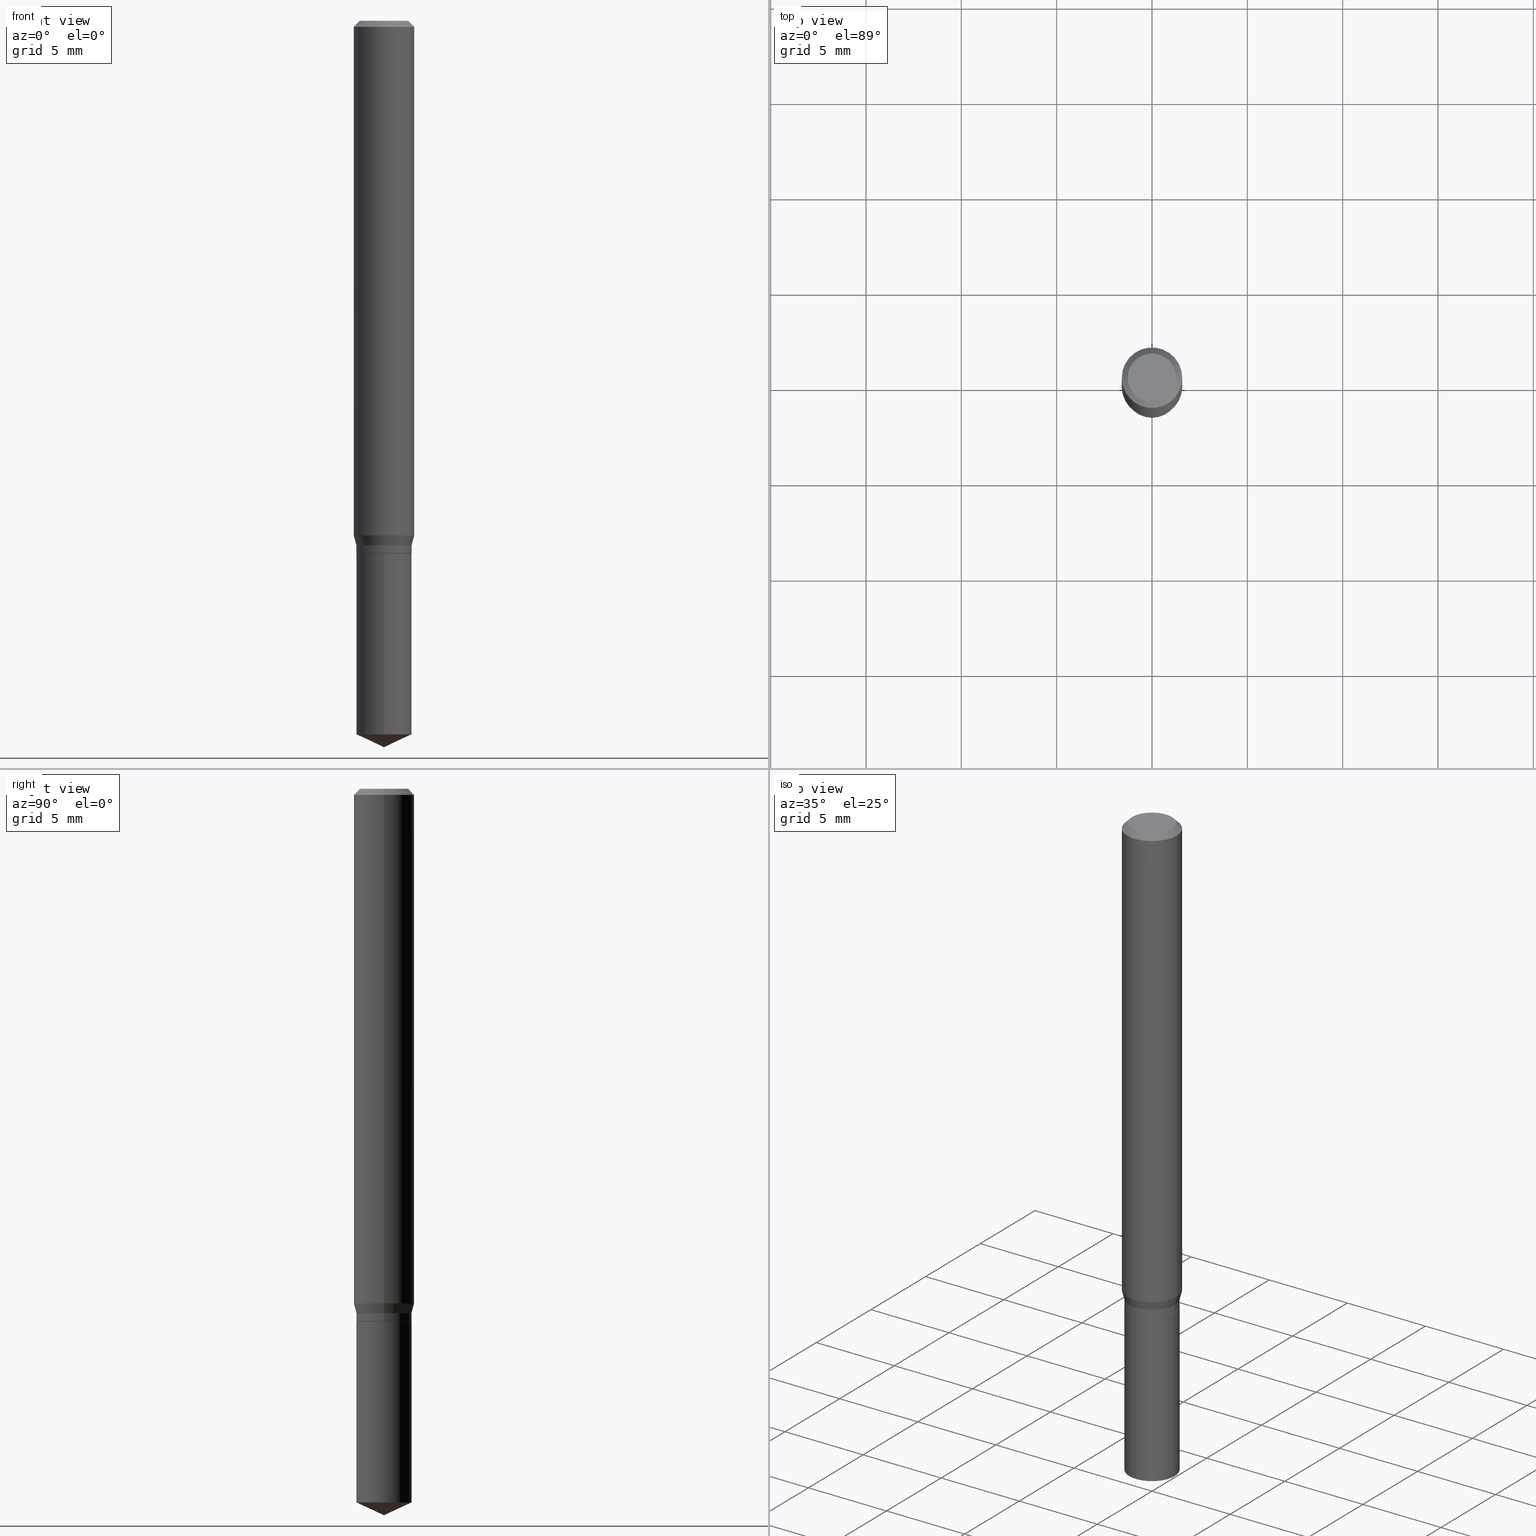
[diagram: canonical four-view strip — front | top / right | iso, engineering-drawing reading convention]
A machine part, canonical four-view strip (front | top / right | iso — engineering-drawing reading convention). The complete STEP part file that produces these views, byte-faithful:
ISO-10303-21;
HEADER;
FILE_DESCRIPTION (( 'STEP AP203' ),
    '1' );
FILE_NAME ('07391.STEP',
    '2024-04-23T20:59:37',
    ( '' ),
    ( '' ),
    'SwSTEP 2.0',
    'SolidWorks 2023',
    '' );
FILE_SCHEMA (( 'CONFIG_CONTROL_DESIGN' ));
ENDSEC;

DATA;
#1 = MECHANICAL_CONTEXT ( 'NONE', #75, 'mechanical' ) ;
#2 = ORIENTED_EDGE ( 'NONE', *, *, #217, .T. ) ;
#3 = EDGE_CURVE ( 'NONE', #171, #19, #347, .T. ) ;
#4 = APPROVAL_DATE_TIME ( #345, #239 ) ;
#5 = CONICAL_SURFACE ( 'NONE', #197, 0.05709999999999999798, 0.2617993877991494633 ) ;
#6 = CIRCLE ( 'NONE', #275, 0.06250000000000012490 ) ;
#7 = DIRECTION ( 'NONE',  ( -2.445468806185136597E-29, 3.491481338843145583E-15, 1.000000000000000000 ) ) ;
#8 = CARTESIAN_POINT ( 'NONE',  ( 2.690015686803650369E-29, -3.840629472727460101E-15, -1.100000000000000089 ) ) ;
#9 = CARTESIAN_POINT ( 'NONE',  ( -0.06250000000000012490, -3.266471848931874513E-15, -1.062746925639127760 ) ) ;
#10 = DIRECTION ( 'NONE',  ( 1.000000000000000000, -6.982962677686269077E-15, 0.000000000000000000 ) ) ;
#11 = CONICAL_SURFACE ( 'NONE', #94, 0.05709999999999999798, 0.2617993877991494633 ) ;
#12 = CARTESIAN_POINT ( 'NONE',  ( -0.05659999999999999060, -3.435813057113132311E-15, -1.100000000000000089 ) ) ;
#13 = DIRECTION ( 'NONE',  ( 6.439704144417016942E-15, 0.9063077870366504918, 0.4226182617406982756 ) ) ;
#14 = EDGE_CURVE ( 'NONE', #454, #132, #475, .T. ) ;
#15 = DIRECTION ( 'NONE',  ( -2.445399690415121530E-29, 3.491580316559632610E-15, 1.000000000000000000 ) ) ;
#16 = VECTOR ( 'NONE', #246, 39.37007874015748854 ) ;
#17 = CIRCLE ( 'NONE', #413, 0.06250000000000000000 ) ;
#18 = FACE_OUTER_BOUND ( 'NONE', #333, .T. ) ;
#19 = VERTEX_POINT ( 'NONE', #114 ) ;
#20 = DIRECTION ( 'NONE',  ( -6.982962677686265133E-15, -1.000000000000000000, 2.392161115292699739E-15 ) ) ;
#21 = ORIENTED_EDGE ( 'NONE', *, *, #147, .F. ) ;
#22 = CARTESIAN_POINT ( 'NONE',  ( 3.056836007731440977E-31, -4.364351673553961068E-17, -0.01250000000000008223 ) ) ;
#23 = VERTEX_POINT ( 'NONE', #191 ) ;
#24 = CIRCLE ( 'NONE', #116, 0.04999999999999999584 ) ;
#25 = APPROVAL_DATE_TIME ( #365, #85 ) ;
#26 = LINE ( 'NONE', #252, #16 ) ;
#27 = ORIENTED_EDGE ( 'NONE', *, *, #48, .F. ) ;
#28 = DIRECTION ( 'NONE',  ( -2.445468806185136597E-29, 3.491481338843145583E-15, 1.000000000000000000 ) ) ;
#29 = ORIENTED_EDGE ( 'NONE', *, *, #304, .T. ) ;
#30 =( LENGTH_UNIT ( ) NAMED_UNIT ( * ) SI_UNIT ( $, .METRE. ) );
#31 = ORIENTED_EDGE ( 'NONE', *, *, #165, .F. ) ;
#32 = AXIS2_PLACEMENT_3D ( 'NONE', #265, #50, #313 ) ;
#33 = LOCAL_TIME ( 16, 59, 37.00000000000000000, #282 ) ;
#34 = CALENDAR_DATE ( 2024, 23, 4 ) ;
#35 = DIRECTION ( 'NONE',  ( 2.438088387897960049E-29, -3.491481338843145188E-15, -1.000000000000000000 ) ) ;
#36 = DIRECTION ( 'NONE',  ( 1.000000000000000000, -6.982962677686269077E-15, 0.000000000000000000 ) ) ;
#37 = COORDINATED_UNIVERSAL_TIME_OFFSET ( 5, 0, .BEHIND. ) ;
#38 = EDGE_CURVE ( 'NONE', #257, #212, #46, .T. ) ;
#39 = CARTESIAN_POINT ( 'NONE',  ( 1.946643104841063088E-47, -2.779290439833033990E-33, -7.960204194457798443E-19 ) ) ;
#40 = VECTOR ( 'NONE', #340, 39.37007874015748143 ) ;
#41 = AXIS2_PLACEMENT_3D ( 'NONE', #433, #98, #443 ) ;
#42 = DIRECTION ( 'NONE',  ( -6.982962677686265133E-15, -1.000000000000000000, 2.392161115292699739E-15 ) ) ;
#43 = CARTESIAN_POINT ( 'NONE',  ( 3.056836007731440977E-31, -4.364351673553961068E-17, -0.01250000000000008223 ) ) ;
#44 = ADVANCED_FACE ( 'NONE', ( #266 ), #343, .F. ) ;
#45 = CARTESIAN_POINT ( 'NONE',  ( -3.987271688958588426E-16, -0.05710000000000383519, -1.099999999999999867 ) ) ;
#46 = CIRCLE ( 'NONE', #400, 0.04999999999999999584 ) ;
#47 = CARTESIAN_POINT ( 'NONE',  ( 3.668252923656895710E-29, -5.237152723863177100E-15, -1.500000000000000222 ) ) ;
#48 = EDGE_CURVE ( 'NONE', #212, #326, #338, .T. ) ;
#49 = DIRECTION ( 'NONE',  ( 2.445468806185136597E-29, -3.491481338843145583E-15, -1.000000000000000000 ) ) ;
#50 = DIRECTION ( 'NONE',  ( -2.445468806185136597E-29, 3.491481338843145583E-15, 1.000000000000000000 ) ) ;
#51 = FACE_OUTER_BOUND ( 'NONE', #139, .T. ) ;
#52 = AXIS2_PLACEMENT_3D ( 'NONE', #346, #427, #148 ) ;
#53 = DIRECTION ( 'NONE',  ( 0.7071067811865232589, -2.468850131082003836E-15, 0.7071067811865715536 ) ) ;
#54 = ORIENTED_EDGE ( 'NONE', *, *, #314, .F. ) ;
#55 = ADVANCED_FACE ( 'NONE', ( #377 ), #459, .T. ) ;
#56 = CARTESIAN_POINT ( 'NONE',  ( 3.668099535622682715E-29, -5.237370474839449507E-15, -1.500000000000000222 ) ) ;
#57 = ORIENTED_EDGE ( 'NONE', *, *, #3, .F. ) ;
#58 = CC_DESIGN_PERSON_AND_ORGANIZATION_ASSIGNMENT ( #129, #100, ( #386 ) ) ;
#59 = FACE_OUTER_BOUND ( 'NONE', #222, .T. ) ;
#60 = ORIENTED_EDGE ( 'NONE', *, *, #399, .F. ) ;
#61 = VECTOR ( 'NONE', #307, 39.37007874015748854 ) ;
#62 = CONICAL_SURFACE ( 'NONE', #256, 0.06250000000000000000, 0.7853981633974452814 ) ;
#63 = CARTESIAN_POINT ( 'NONE',  ( 2.598914455519641548E-29, -3.710561058781938706E-15, -1.062746925639127760 ) ) ;
#64 = ADVANCED_FACE ( 'NONE', ( #261 ), #232, .T. ) ;
#65 = ORIENTED_EDGE ( 'NONE', *, *, #126, .F. ) ;
#66 = APPROVAL_STATUS ( 'not_yet_approved' ) ;
#67 = ORIENTED_EDGE ( 'NONE', *, *, #378, .T. ) ;
#68 = DIRECTION ( 'NONE',  ( 1.000000000000000000, -6.982962677686266711E-15, 4.876176775795935232E-29 ) ) ;
#69 = DIRECTION ( 'NONE',  ( 6.982962677686265922E-15, 1.000000000000000000, -3.491580316559632610E-15 ) ) ;
#70 = CC_DESIGN_APPROVAL ( #239, ( #386 ) ) ;
#71 = APPROVAL_STATUS ( 'not_yet_approved' ) ;
#72 = LINE ( 'NONE', #228, #268 ) ;
#73 = ADVANCED_FACE ( 'NONE', ( #299 ), #76, .T. ) ;
#74 = CARTESIAN_POINT ( 'NONE',  ( -0.06250000000000000000, 3.927916506198521080E-16, -0.01250000000000008223 ) ) ;
#75 = APPLICATION_CONTEXT ( 'configuration controlled 3d designs of mechanical parts and assemblies' ) ;
#76 = CYLINDRICAL_SURFACE ( 'NONE', #244, 0.05709999999999999798 ) ;
#77 = CONICAL_SURFACE ( 'NONE', #295, 0.06250000000000000000, 0.7853981633974452814 ) ;
#78 = ORGANIZATION ( 'UNSPECIFIED', 'UNSPECIFIED', '' ) ;
#79 = LINE ( 'NONE', #460, #162 ) ;
#80 = DIRECTION ( 'NONE',  ( -2.445468806185136877E-29, 3.491481338843145188E-15, 1.000000000000000000 ) ) ;
#81 = DIRECTION ( 'NONE',  ( -2.445468806185136597E-29, 3.491481338843145583E-15, 1.000000000000000000 ) ) ;
#82 = AXIS2_PLACEMENT_3D ( 'NONE', #272, #157, #317 ) ;
#83 = CARTESIAN_POINT ( 'NONE',  ( 2.690015686803650369E-29, -3.840629472727460101E-15, -1.100000000000000089 ) ) ;
#84 = AXIS2_PLACEMENT_3D ( 'NONE', #285, #289, #20 ) ;
#85 = APPROVAL ( #251, 'UNSPECIFIED' ) ;
#86 = DIRECTION ( 'NONE',  ( -2.445468806185136597E-29, 3.491481338843145583E-15, 1.000000000000000000 ) ) ;
#87 = ORIENTED_EDGE ( 'NONE', *, *, #359, .T. ) ;
#88 = CYLINDRICAL_SURFACE ( 'NONE', #426, 0.06250000000000006939 ) ;
#89 = UNCERTAINTY_MEASURE_WITH_UNIT (LENGTH_MEASURE( 1.000000000000000082E-05 ), #373, 'distance_accuracy_value', 'NONE');
#90 = CARTESIAN_POINT ( 'NONE',  ( -0.05709999999999999798, -3.404184534826623362E-15, -1.082899999999999974 ) ) ;
#91 = CIRCLE ( 'NONE', #32, 0.06250000000000000000 ) ;
#92 = ORIENTED_EDGE ( 'NONE', *, *, #463, .F. ) ;
#93 = ADVANCED_FACE ( 'NONE', ( #113 ), #274, .T. ) ;
#94 = AXIS2_PLACEMENT_3D ( 'NONE', #218, #242, #434 ) ;
#95 = CARTESIAN_POINT ( 'NONE',  ( 4.057199021190439637E-16, 0.05709999999999615383, -1.100000000000000089 ) ) ;
#96 = EDGE_LOOP ( 'NONE', ( #54, #57 ) ) ;
#97 = VERTEX_POINT ( 'NONE', #349 ) ;
#98 = DIRECTION ( 'NONE',  ( -2.445399690415121530E-29, 3.491580316559632610E-15, 1.000000000000000000 ) ) ;
#99 = ORIENTED_EDGE ( 'NONE', *, *, #287, .T. ) ;
#100 = PERSON_AND_ORGANIZATION_ROLE ( 'design_supplier' ) ;
#101 = EDGE_CURVE ( 'NONE', #358, #454, #115, .T. ) ;
#102 = DIRECTION ( 'NONE',  ( -2.445399690415121810E-29, 3.491580316559632610E-15, 1.000000000000000000 ) ) ;
#103 = ORIENTED_EDGE ( 'NONE', *, *, #442, .F. ) ;
#104 = CIRCLE ( 'NONE', #131, 0.05709999999999999798 ) ;
#105 = LOCAL_TIME ( 16, 59, 37.00000000000000000, #186 ) ;
#106 = PERSON_AND_ORGANIZATION ( #344, #78 ) ;
#107 = EDGE_LOOP ( 'NONE', ( #182, #407 ) ) ;
#108 = DIRECTION ( 'NONE',  ( 2.445399690415121250E-29, -3.491580316559632610E-15, -1.000000000000000000 ) ) ;
#109 = DATE_AND_TIME ( #335, #105 ) ;
#110 = CARTESIAN_POINT ( 'NONE',  ( 0.000000000000000000, 0.000000000000000000, 0.000000000000000000 ) ) ;
#111 = CC_DESIGN_APPROVAL ( #85, ( #446 ) ) ;
#112 = APPROVAL_ROLE ( '' ) ;
#113 = FACE_OUTER_BOUND ( 'NONE', #415, .T. ) ;
#114 = CARTESIAN_POINT ( 'NONE',  ( 0.05659999999999999060, -4.235865160284502709E-15, -1.100000000000000089 ) ) ;
#115 = LINE ( 'NONE', #154, #61 ) ;
#116 = AXIS2_PLACEMENT_3D ( 'NONE', #315, #464, #354 ) ;
#117 = VECTOR ( 'NONE', #102, 39.37007874015748143 ) ;
#118 = LINE ( 'NONE', #269, #467 ) ;
#119 = DIRECTION ( 'NONE',  ( 1.000000000000000000, -6.982962677686268288E-15, 0.000000000000000000 ) ) ;
#120 = DIRECTION ( 'NONE',  ( -1.000000000000000000, 6.982962677686266711E-15, 0.000000000000000000 ) ) ;
#121 = ADVANCED_FACE ( 'NONE', ( #457 ), #224, .F. ) ;
#122 = AXIS2_PLACEMENT_3D ( 'NONE', #210, #363, #140 ) ;
#123 = LINE ( 'NONE', #47, #310 ) ;
#124 = CIRCLE ( 'NONE', #198, 0.05709999999999999798 ) ;
#125 = DIRECTION ( 'NONE',  ( 1.000000000000000000, -6.982962677686266711E-15, 4.876176775795935793E-29 ) ) ;
#126 = EDGE_CURVE ( 'NONE', #171, #260, #226, .T. ) ;
#127 = DIRECTION ( 'NONE',  ( -2.445468806185136597E-29, 3.491481338843145583E-15, 1.000000000000000000 ) ) ;
#128 = ORIENTED_EDGE ( 'NONE', *, *, #422, .F. ) ;
#129 = PERSON_AND_ORGANIZATION ( #344, #78 ) ;
#130 = LINE ( 'NONE', #95, #117 ) ;
#131 = AXIS2_PLACEMENT_3D ( 'NONE', #206, #432, #205 ) ;
#132 = VERTEX_POINT ( 'NONE', #420 ) ;
#133 = AXIS2_PLACEMENT_3D ( 'NONE', #440, #477, #291 ) ;
#134 = CARTESIAN_POINT ( 'NONE',  ( -9.260740279983036507E-28, 1.322265303911854087E-13, 37.87007874015748143 ) ) ;
#135 = EDGE_LOOP ( 'NONE', ( #411, #195, #128, #444 ) ) ;
#136 = EDGE_CURVE ( 'NONE', #334, #298, #72, .T. ) ;
#137 = PERSON_AND_ORGANIZATION_ROLE ( 'classification_officer' ) ;
#138 = CARTESIAN_POINT ( 'NONE',  ( 0.000000000000000000, 0.000000000000000000, 0.000000000000000000 ) ) ;
#139 = EDGE_LOOP ( 'NONE', ( #293, #31, #253, #441 ) ) ;
#140 = DIRECTION ( 'NONE',  ( 1.000000000000000000, -6.982962677686264344E-15, 0.000000000000000000 ) ) ;
#141 = VERTEX_POINT ( 'NONE', #303 ) ;
#142 = APPROVAL_PERSON_ORGANIZATION ( #183, #85, #327 ) ;
#143 = PERSON_AND_ORGANIZATION_ROLE ( 'creator' ) ;
#144 = CARTESIAN_POINT ( 'NONE',  ( 0.000000000000000000, 0.000000000000000000, 0.000000000000000000 ) ) ;
#145 = DIRECTION ( 'NONE',  ( -6.982962677686268288E-15, -1.000000000000000000, 3.520397390770490158E-15 ) ) ;
#146 = APPROVAL_ROLE ( '' ) ;
#147 = EDGE_CURVE ( 'NONE', #326, #474, #91, .T. ) ;
#148 = DIRECTION ( 'NONE',  ( -6.982962677686265133E-15, -1.000000000000000000, 4.784322230585399479E-15 ) ) ;
#149 = CARTESIAN_POINT ( 'NONE',  ( 0.000000000000000000, 0.000000000000000000, 0.000000000000000000 ) ) ;
#150 = DIRECTION ( 'NONE',  ( -2.445399690415121530E-29, 3.491580316559632610E-15, 1.000000000000000000 ) ) ;
#151 = VECTOR ( 'NONE', #236, 39.37007874015748143 ) ;
#152 = DIRECTION ( 'NONE',  ( -2.445399690415121530E-29, 3.491580316559632610E-15, 1.000000000000000000 ) ) ;
#153 = ADVANCED_FACE ( 'NONE', ( #465 ), #161, .T. ) ;
#154 = CARTESIAN_POINT ( 'NONE',  ( 3.668099535622682155E-29, -5.237370474839448718E-15, -1.500000000000000222 ) ) ;
#155 = CARTESIAN_POINT ( 'NONE',  ( 0.05709999999999999798, -3.987271688958858118E-16, 2.784296938979478878E-30 ) ) ;
#156 = AXIS2_PLACEMENT_3D ( 'NONE', #240, #241, #309 ) ;
#157 = DIRECTION ( 'NONE',  ( -2.445399690415121530E-29, 3.491580316559632610E-15, 1.000000000000000000 ) ) ;
#158 = CYLINDRICAL_SURFACE ( 'NONE', #219, 0.06250000000000006939 ) ;
#159 = EDGE_CURVE ( 'NONE', #23, #260, #486, .T. ) ;
#160 = ORIENTED_EDGE ( 'NONE', *, *, #385, .F. ) ;
#161 = CYLINDRICAL_SURFACE ( 'NONE', #176, 0.05709999999999999798 ) ;
#162 = VECTOR ( 'NONE', #80, 39.37007874015748143 ) ;
#163 = APPROVAL_PERSON_ORGANIZATION ( #453, #239, #112 ) ;
#164 = CARTESIAN_POINT ( 'NONE',  ( 0.000000000000000000, 0.000000000000000000, 0.000000000000000000 ) ) ;
#165 = EDGE_CURVE ( 'NONE', #212, #257, #24, .T. ) ;
#166 = CARTESIAN_POINT ( 'NONE',  ( -0.05709999999999999798, 4.057199021190171918E-16, -2.808711936535550940E-30 ) ) ;
#167 = ORIENTED_EDGE ( 'NONE', *, *, #159, .F. ) ;
#168 = ORIENTED_EDGE ( 'NONE', *, *, #14, .F. ) ;
#169 = CC_DESIGN_PERSON_AND_ORGANIZATION_ASSIGNMENT ( #339, #451, ( #208 ) ) ;
#170 = DIRECTION ( 'NONE',  ( -6.982962677686268288E-15, -1.000000000000000000, 3.520397390770490158E-15 ) ) ;
#171 = VERTEX_POINT ( 'NONE', #12 ) ;
#172 = ORIENTED_EDGE ( 'NONE', *, *, #422, .T. ) ;
#173 = DESIGN_CONTEXT ( 'detailed design', #458, 'design' ) ;
#174 = MANIFOLD_SOLID_BREP ( 'Body-Move/Copy2[2]', #264 ) ;
#175 = DIRECTION ( 'NONE',  ( -1.000000000000000000, 6.982962677686266711E-15, 0.000000000000000000 ) ) ;
#176 = AXIS2_PLACEMENT_3D ( 'NONE', #235, #15, #207 ) ;
#177 = ORIENTED_EDGE ( 'NONE', *, *, #308, .F. ) ;
#178 = ORIENTED_EDGE ( 'NONE', *, *, #287, .F. ) ;
#179 = DATE_TIME_ROLE ( 'classification_date' ) ;
#180 = DIRECTION ( 'NONE',  ( -2.445468806185136597E-29, 3.491481338843145583E-15, 1.000000000000000000 ) ) ;
#181 = ORIENTED_EDGE ( 'NONE', *, *, #159, .T. ) ;
#182 = ORIENTED_EDGE ( 'NONE', *, *, #196, .T. ) ;
#183 = PERSON_AND_ORGANIZATION ( #344, #78 ) ;
#184 = FACE_OUTER_BOUND ( 'NONE', #280, .T. ) ;
#185 = ORIENTED_EDGE ( 'NONE', *, *, #408, .F. ) ;
#186 = COORDINATED_UNIVERSAL_TIME_OFFSET ( 5, 0, .BEHIND. ) ;
#187 = CARTESIAN_POINT ( 'NONE',  ( 3.893286209682126177E-47, -5.558580879666067980E-33, -1.592040838891559689E-18 ) ) ;
#188 = DIMENSIONAL_EXPONENTS ( 1.000000000000000000, 0.000000000000000000, 0.000000000000000000, 0.000000000000000000, 0.000000000000000000, 0.000000000000000000, 0.000000000000000000 ) ;
#189 = EDGE_CURVE ( 'NONE', #358, #132, #123, .T. ) ;
#190 = DIRECTION ( 'NONE',  ( 0.000000000000000000, 0.000000000000000000, 1.000000000000000000 ) ) ;
#191 = CARTESIAN_POINT ( 'NONE',  ( 0.05709999999999999798, -4.237610900953924212E-15, -1.099499999999999922 ) ) ;
#192 = CC_DESIGN_DATE_AND_TIME_ASSIGNMENT ( #109, #227, ( #208 ) ) ;
#193 = DIRECTION ( 'NONE',  ( -0.2588190451025207395, 5.211531920934546309E-15, 0.9659258262890682012 ) ) ;
#194 = CALENDAR_DATE ( 2024, 23, 4 ) ;
#195 = ORIENTED_EDGE ( 'NONE', *, *, #136, .T. ) ;
#196 = EDGE_CURVE ( 'NONE', #448, #141, #336, .T. ) ;
#197 = AXIS2_PLACEMENT_3D ( 'NONE', #356, #81, #119 ) ;
#198 = AXIS2_PLACEMENT_3D ( 'NONE', #325, #28, #357 ) ;
#199 = CARTESIAN_POINT ( 'NONE',  ( 2.690015686803650369E-29, -3.840629472727460101E-15, -1.100000000000000089 ) ) ;
#200 = PLANE ( 'NONE',  #366 ) ;
#201 = DIRECTION ( 'NONE',  ( -2.445399690415121810E-29, 3.491580316559632610E-15, 1.000000000000000000 ) ) ;
#202 = CONICAL_SURFACE ( 'NONE', #383, 0.05659999999999999060, 0.7853981633974141952 ) ;
#203 = ADVANCED_FACE ( 'NONE', ( #387 ), #5, .T. ) ;
#204 = VECTOR ( 'NONE', #483, 39.37007874015748143 ) ;
#205 = DIRECTION ( 'NONE',  ( 1.000000000000000000, -6.982962677686268288E-15, 0.000000000000000000 ) ) ;
#206 = CARTESIAN_POINT ( 'NONE',  ( 2.648198170217884742E-29, -3.780925141833243102E-15, -1.082899999999999974 ) ) ;
#207 = DIRECTION ( 'NONE',  ( -6.982962677686265133E-15, -1.000000000000000000, 2.392161115292699739E-15 ) ) ;
#208 = PRODUCT_DEFINITION ( 'UNKNOWN', '', #386, #173 ) ;
#209 = AXIS2_PLACEMENT_3D ( 'NONE', #487, #152, #145 ) ;
#210 = CARTESIAN_POINT ( 'NONE',  ( 2.598914455519641548E-29, -3.710561058781938706E-15, -1.062746925639127760 ) ) ;
#211 = LINE ( 'NONE', #166, #311 ) ;
#212 = VERTEX_POINT ( 'NONE', #276 ) ;
#213 = EDGE_LOOP ( 'NONE', ( #439, #371, #447, #177 ) ) ;
#214 = DIRECTION ( 'NONE',  ( -2.445468806185136877E-29, 3.491481338843145188E-15, 1.000000000000000000 ) ) ;
#215 = ORIENTED_EDGE ( 'NONE', *, *, #189, .F. ) ;
#216 = CALENDAR_DATE ( 2024, 23, 4 ) ;
#217 = EDGE_CURVE ( 'NONE', #334, #397, #104, .T. ) ;
#218 = CARTESIAN_POINT ( 'NONE',  ( 2.648198170217884742E-29, -3.780925141833243102E-15, -1.082899999999999974 ) ) ;
#219 = AXIS2_PLACEMENT_3D ( 'NONE', #164, #469, #125 ) ;
#220 = ORIENTED_EDGE ( 'NONE', *, *, #408, .T. ) ;
#221 = CARTESIAN_POINT ( 'NONE',  ( 3.056836007731440977E-31, -4.364351673553961068E-17, -0.01250000000000008223 ) ) ;
#222 = EDGE_LOOP ( 'NONE', ( #172, #87, #185, #290 ) ) ;
#223 = PERSON_AND_ORGANIZATION ( #344, #78 ) ;
#224 = PLANE ( 'NONE',  #392 ) ;
#225 = ADVANCED_FACE ( 'NONE', ( #238 ), #202, .T. ) ;
#226 = LINE ( 'NONE', #452, #352 ) ;
#227 = DATE_TIME_ROLE ( 'creation_date' ) ;
#228 = CARTESIAN_POINT ( 'NONE',  ( -0.05709999999999999798, -3.375205239714225614E-15, -1.082899999999999974 ) ) ;
#229 = ADVANCED_FACE ( 'NONE', ( #396 ), #77, .T. ) ;
#230 = PERSON_AND_ORGANIZATION_ROLE ( 'design_owner' ) ;
#231 = CC_DESIGN_PERSON_AND_ORGANIZATION_ASSIGNMENT ( #480, #137, ( #446 ) ) ;
#232 = CYLINDRICAL_SURFACE ( 'NONE', #283, 0.05709999999999999798 ) ;
#233 = AXIS2_PLACEMENT_3D ( 'NONE', #351, #312, #10 ) ;
#234 = LOCAL_TIME ( 16, 59, 37.00000000000000000, #37 ) ;
#235 = CARTESIAN_POINT ( 'NONE',  ( 2.690015686803650369E-29, -3.840629472727460101E-15, -1.100000000000000089 ) ) ;
#236 = DIRECTION ( 'NONE',  ( -2.445468806185136877E-29, 3.491481338843145188E-15, 1.000000000000000000 ) ) ;
#237 = ADVANCED_FACE ( 'NONE', ( #270 ), #200, .F. ) ;
#238 = FACE_OUTER_BOUND ( 'NONE', #306, .T. ) ;
#239 = APPROVAL ( #66, 'UNSPECIFIED' ) ;
#240 = CARTESIAN_POINT ( 'NONE',  ( 2.688792952400557567E-29, -3.838883732058038598E-15, -1.099499999999999922 ) ) ;
#241 = DIRECTION ( 'NONE',  ( -2.445468806185136597E-29, 3.491481338843145583E-15, 1.000000000000000000 ) ) ;
#242 = DIRECTION ( 'NONE',  ( -2.445468806185136597E-29, 3.491481338843145583E-15, 1.000000000000000000 ) ) ;
#243 = SECURITY_CLASSIFICATION_LEVEL ( 'unclassified' ) ;
#244 = AXIS2_PLACEMENT_3D ( 'NONE', #8, #150, #42 ) ;
#245 = AXIS2_PLACEMENT_3D ( 'NONE', #149, #488, #68 ) ;
#246 = DIRECTION ( 'NONE',  ( 0.2588190451025207395, 1.565188264969626109E-15, 0.9659258262890682012 ) ) ;
#247 = ORIENTED_EDGE ( 'NONE', *, *, #394, .F. ) ;
#248 = ORIENTED_EDGE ( 'NONE', *, *, #449, .F. ) ;
#249 = DIRECTION ( 'NONE',  ( 2.445468806185136597E-29, -3.491481338843145583E-15, -1.000000000000000000 ) ) ;
#250 = EDGE_LOOP ( 'NONE', ( #374, #389 ) ) ;
#251 = APPROVAL_STATUS ( 'not_yet_approved' ) ;
#252 = CARTESIAN_POINT ( 'NONE',  ( 0.05709999999999999798, -4.179652310729128716E-15, -1.082899999999999974 ) ) ;
#253 = ORIENTED_EDGE ( 'NONE', *, *, #48, .T. ) ;
#254 = CARTESIAN_POINT ( 'NONE',  ( 0.05659999999999999060, -4.235865160284502709E-15, -1.100000000000000089 ) ) ;
#255 = VECTOR ( 'NONE', #201, 39.37007874015748143 ) ;
#256 = AXIS2_PLACEMENT_3D ( 'NONE', #221, #249, #175 ) ;
#257 = VERTEX_POINT ( 'NONE', #391 ) ;
#258 = DATE_AND_TIME ( #34, #284 ) ;
#259 = ADVANCED_FACE ( 'NONE', ( #353 ), #158, .T. ) ;
#260 = VERTEX_POINT ( 'NONE', #278 ) ;
#261 = FACE_OUTER_BOUND ( 'NONE', #416, .T. ) ;
#262 = PERSON_AND_ORGANIZATION ( #344, #78 ) ;
#263 = DIRECTION ( 'NONE',  ( -0.7071067811865232589, 7.493145998870265808E-15, 0.7071067811865715536 ) ) ;
#264 = CLOSED_SHELL ( 'NONE', ( #225, #229, #342, #203, #64, #479, #355, #259, #418, #44, #237, #93 ) ) ;
#265 = CARTESIAN_POINT ( 'NONE',  ( 3.056836007731440977E-31, -4.364351673553961068E-17, -0.01250000000000008223 ) ) ;
#266 = FACE_OUTER_BOUND ( 'NONE', #250, .T. ) ;
#267 = DIRECTION ( 'NONE',  ( -2.445468806185136597E-29, 3.491481338843145583E-15, 1.000000000000000000 ) ) ;
#268 = VECTOR ( 'NONE', #193, 39.37007874015748854 ) ;
#269 = CARTESIAN_POINT ( 'NONE',  ( 0.06250000000000000000, -4.724246415962602840E-16, -0.01250000000000008223 ) ) ;
#270 = FACE_OUTER_BOUND ( 'NONE', #96, .T. ) ;
#271 = PRODUCT_RELATED_PRODUCT_CATEGORY ( 'detail', '', ( #466 ) ) ;
#272 = CARTESIAN_POINT ( 'NONE',  ( 2.690015686803650369E-29, -3.840629472727460101E-15, -1.100000000000000089 ) ) ;
#273 = EDGE_CURVE ( 'NONE', #97, #474, #79, .T. ) ;
#274 = CONICAL_SURFACE ( 'NONE', #431, 0.05659999999999999060, 0.7853981633974141952 ) ;
#275 = AXIS2_PLACEMENT_3D ( 'NONE', #63, #332, #398 ) ;
#276 = CARTESIAN_POINT ( 'NONE',  ( -0.04999999999999999584, 3.709698922520826725E-16, -1.592040838894077649E-18 ) ) ;
#277 = ADVANCED_BREP_SHAPE_REPRESENTATION ( '07391', ( #489, #174, #376 ), #337 ) ;
#278 = CARTESIAN_POINT ( 'NONE',  ( -0.05709999999999999798, -3.404184534826623362E-15, -1.099499999999999922 ) ) ;
#279 = PRODUCT_DEFINITION_SHAPE ( 'NONE', 'NONE',  #208 ) ;
#280 = EDGE_LOOP ( 'NONE', ( #485, #2, #331, #160 ) ) ;
#281 = ORIENTED_EDGE ( 'NONE', *, *, #314, .T. ) ;
#282 = COORDINATED_UNIVERSAL_TIME_OFFSET ( 5, 0, .BEHIND. ) ;
#283 = AXIS2_PLACEMENT_3D ( 'NONE', #110, #7, #456 ) ;
#284 = LOCAL_TIME ( 16, 59, 37.00000000000000000, #421 ) ;
#285 = CARTESIAN_POINT ( 'NONE',  ( 2.690015686803650369E-29, -3.840629472727460101E-15, -1.100000000000000089 ) ) ;
#286 = EDGE_LOOP ( 'NONE', ( #215, #322, #92 ) ) ;
#287 = EDGE_CURVE ( 'NONE', #23, #397, #350, .T. ) ;
#288 = ORIENTED_EDGE ( 'NONE', *, *, #385, .T. ) ;
#289 = DIRECTION ( 'NONE',  ( -2.445399690415121530E-29, 3.491580316559632610E-15, 1.000000000000000000 ) ) ;
#290 = ORIENTED_EDGE ( 'NONE', *, *, #273, .F. ) ;
#291 = DIRECTION ( 'NONE',  ( 1.000000000000000000, -6.982962677686268288E-15, 0.000000000000000000 ) ) ;
#292 = EDGE_LOOP ( 'NONE', ( #473, #482, #168 ) ) ;
#293 = ORIENTED_EDGE ( 'NONE', *, *, #304, .F. ) ;
#294 = CC_DESIGN_PERSON_AND_ORGANIZATION_ASSIGNMENT ( #262, #230, ( #466 ) ) ;
#295 = AXIS2_PLACEMENT_3D ( 'NONE', #43, #49, #120 ) ;
#296 = CIRCLE ( 'NONE', #133, 0.05709999999999999798 ) ;
#297 = ORIENTED_EDGE ( 'NONE', *, *, #463, .T. ) ;
#298 = VERTEX_POINT ( 'NONE', #9 ) ;
#299 = FACE_OUTER_BOUND ( 'NONE', #364, .T. ) ;
#300 = APPROVAL_DATE_TIME ( #258, #425 ) ;
#301 = DIRECTION ( 'NONE',  ( -2.445468806185136597E-29, 3.491481338843145583E-15, 1.000000000000000000 ) ) ;
#302 = APPLICATION_PROTOCOL_DEFINITION ( 'international standard', 'config_control_design', 1994, #458 ) ;
#303 = CARTESIAN_POINT ( 'NONE',  ( 4.057199021190531836E-16, 0.05709999999999615383, -1.100000000000000089 ) ) ;
#304 = EDGE_CURVE ( 'NONE', #257, #474, #118, .T. ) ;
#305 =( NAMED_UNIT ( * ) SI_UNIT ( $, .STERADIAN. ) SOLID_ANGLE_UNIT ( ) );
#306 = EDGE_LOOP ( 'NONE', ( #281, #410, #167, #423 ) ) ;
#307 = DIRECTION ( 'NONE',  ( -6.328713451373362279E-15, -0.9063077870366474942, 0.4226182617407045483 ) ) ;
#308 = EDGE_CURVE ( 'NONE', #454, #448, #390, .T. ) ;
#309 = DIRECTION ( 'NONE',  ( 1.000000000000000000, -6.982962677686268288E-15, 0.000000000000000000 ) ) ;
#310 = VECTOR ( 'NONE', #13, 39.37007874015748143 ) ;
#311 = VECTOR ( 'NONE', #214, 39.37007874015748143 ) ;
#312 = DIRECTION ( 'NONE',  ( -2.445468806185136597E-29, 3.491481338843145583E-15, 1.000000000000000000 ) ) ;
#313 = DIRECTION ( 'NONE',  ( 1.000000000000000000, -6.982962677686266711E-15, 0.000000000000000000 ) ) ;
#314 = EDGE_CURVE ( 'NONE', #19, #171, #445, .T. ) ;
#315 = CARTESIAN_POINT ( 'NONE',  ( 3.893286209682126177E-47, -5.558580879666067980E-33, -1.592040838891559689E-18 ) ) ;
#316 = CC_DESIGN_APPROVAL ( #425, ( #208 ) ) ;
#317 = DIRECTION ( 'NONE',  ( -6.982962677686265133E-15, -1.000000000000000000, 2.392161115292699739E-15 ) ) ;
#318 = CYLINDRICAL_SURFACE ( 'NONE', #245, 0.05709999999999999798 ) ;
#319 = ORIENTED_EDGE ( 'NONE', *, *, #217, .F. ) ;
#320 = FACE_OUTER_BOUND ( 'NONE', #286, .T. ) ;
#321 = ORIENTED_EDGE ( 'NONE', *, *, #3, .T. ) ;
#322 = ORIENTED_EDGE ( 'NONE', *, *, #101, .T. ) ;
#323 = AXIS2_PLACEMENT_3D ( 'NONE', #39, #35, #382 ) ;
#324 = CIRCLE ( 'NONE', #122, 0.06250000000000012490 ) ;
#325 = CARTESIAN_POINT ( 'NONE',  ( 2.648198170217884742E-29, -3.780925141833243102E-15, -1.082899999999999974 ) ) ;
#326 = VERTEX_POINT ( 'NONE', #470 ) ;
#327 = APPROVAL_ROLE ( '' ) ;
#328 = CARTESIAN_POINT ( 'NONE',  ( -3.987271688958588426E-16, -0.05710000000000383519, -1.099999999999999867 ) ) ;
#329 = EDGE_LOOP ( 'NONE', ( #361, #288, #372, #21 ) ) ;
#330 = EDGE_CURVE ( 'NONE', #397, #97, #26, .T. ) ;
#331 = ORIENTED_EDGE ( 'NONE', *, *, #330, .T. ) ;
#332 = DIRECTION ( 'NONE',  ( -2.445468806185136597E-29, 3.491481338843145583E-15, 1.000000000000000000 ) ) ;
#333 = EDGE_LOOP ( 'NONE', ( #247, #484, #99, #319 ) ) ;
#334 = VERTEX_POINT ( 'NONE', #90 ) ;
#335 = CALENDAR_DATE ( 2024, 23, 4 ) ;
#336 = CIRCLE ( 'NONE', #82, 0.05709999999999999798 ) ;
#337 =( GEOMETRIC_REPRESENTATION_CONTEXT ( 3 ) GLOBAL_UNCERTAINTY_ASSIGNED_CONTEXT ( ( #89 ) ) GLOBAL_UNIT_ASSIGNED_CONTEXT ( ( #373, #381, #305 ) ) REPRESENTATION_CONTEXT ( 'NONE', 'WORKASPACE' ) );
#338 = LINE ( 'NONE', #74, #40 ) ;
#339 = PERSON_AND_ORGANIZATION ( #344, #78 ) ;
#340 = DIRECTION ( 'NONE',  ( -0.7071067811865453523, 2.468850131082234184E-15, -0.7071067811865496822 ) ) ;
#341 = APPLICATION_PROTOCOL_DEFINITION ( 'international standard', 'config_control_design', 1994, #75 ) ;
#342 = ADVANCED_FACE ( 'NONE', ( #59 ), #88, .T. ) ;
#343 = PLANE ( 'NONE',  #323 ) ;
#344 = PERSON ( 'UNSPECIFIED', 'UNSPECIFIED', 'UNSPECIFIED', ('UNSPECIFIED'), ('UNSPECIFIED'), ('UNSPECIFIED') ) ;
#345 = DATE_AND_TIME ( #194, #234 ) ;
#346 = CARTESIAN_POINT ( 'NONE',  ( 3.603063941744655635E-29, -5.144294197768769891E-15, -1.473373832719349519 ) ) ;
#347 = CIRCLE ( 'NONE', #375, 0.05659999999999999060 ) ;
#348 = VECTOR ( 'NONE', #53, 39.37007874015748854 ) ;
#349 = CARTESIAN_POINT ( 'NONE',  ( 0.06250000000000012490, -4.146996226137331165E-15, -1.062746925639127760 ) ) ;
#350 = LINE ( 'NONE', #155, #151 ) ;
#351 = CARTESIAN_POINT ( 'NONE',  ( 2.690015686803650369E-29, -3.840629472727460101E-15, -1.100000000000000089 ) ) ;
#352 = VECTOR ( 'NONE', #263, 39.37007874015748854 ) ;
#353 = FACE_OUTER_BOUND ( 'NONE', #329, .T. ) ;
#354 = DIRECTION ( 'NONE',  ( 1.000000000000000000, -6.982962677686265922E-15, 4.875957971899673662E-29 ) ) ;
#355 = ADVANCED_FACE ( 'NONE', ( #184 ), #11, .T. ) ;
#356 = CARTESIAN_POINT ( 'NONE',  ( 2.648198170217884742E-29, -3.780925141833243102E-15, -1.082899999999999974 ) ) ;
#357 = DIRECTION ( 'NONE',  ( 1.000000000000000000, -6.982962677686268288E-15, 0.000000000000000000 ) ) ;
#358 = VERTEX_POINT ( 'NONE', #56 ) ;
#359 = EDGE_CURVE ( 'NONE', #298, #326, #368, .T. ) ;
#360 = CARTESIAN_POINT ( 'NONE',  ( 0.05709999999999999798, -4.179652310729128716E-15, -1.082899999999999974 ) ) ;
#361 = ORIENTED_EDGE ( 'NONE', *, *, #359, .F. ) ;
#362 = CC_DESIGN_PERSON_AND_ORGANIZATION_ASSIGNMENT ( #223, #143, ( #386 ) ) ;
#363 = DIRECTION ( 'NONE',  ( -2.445468806185136597E-29, 3.491481338843145583E-15, 1.000000000000000000 ) ) ;
#364 = EDGE_LOOP ( 'NONE', ( #60, #297, #404, #103 ) ) ;
#365 = DATE_AND_TIME ( #216, #33 ) ;
#366 = AXIS2_PLACEMENT_3D ( 'NONE', #83, #429, #395 ) ;
#367 = LOCAL_TIME ( 16, 59, 37.00000000000000000, #405 ) ;
#368 = LINE ( 'NONE', #437, #204 ) ;
#369 = ADVANCED_FACE ( 'NONE', ( #320 ), #401, .T. ) ;
#370 = EDGE_LOOP ( 'NONE', ( #438, #29, #220, #27 ) ) ;
#371 = ORIENTED_EDGE ( 'NONE', *, *, #399, .T. ) ;
#372 = ORIENTED_EDGE ( 'NONE', *, *, #273, .T. ) ;
#373 =( CONVERSION_BASED_UNIT ( 'INCH', #419 ) LENGTH_UNIT ( ) NAMED_UNIT ( #188 ) );
#374 = ORIENTED_EDGE ( 'NONE', *, *, #165, .T. ) ;
#375 = AXIS2_PLACEMENT_3D ( 'NONE', #490, #267, #384 ) ;
#376 = AXIS2_PLACEMENT_3D ( 'NONE', #144, #190, #379 ) ;
#377 = FACE_OUTER_BOUND ( 'NONE', #292, .T. ) ;
#378 = EDGE_CURVE ( 'NONE', #19, #23, #403, .T. ) ;
#379 = DIRECTION ( 'NONE',  ( 1.000000000000000000, 0.000000000000000000, 0.000000000000000000 ) ) ;
#380 = DIRECTION ( 'NONE',  ( 1.000000000000000000, -6.982962677686265922E-15, 4.875957971899673662E-29 ) ) ;
#381 =( NAMED_UNIT ( * ) PLANE_ANGLE_UNIT ( ) SI_UNIT ( $, .RADIAN. ) );
#382 = DIRECTION ( 'NONE',  ( -1.000000000000000000, 6.982962677686265922E-15, -4.876176775795935793E-29 ) ) ;
#383 = AXIS2_PLACEMENT_3D ( 'NONE', #430, #86, #462 ) ;
#384 = DIRECTION ( 'NONE',  ( 1.000000000000000000, -6.982962677686269077E-15, 0.000000000000000000 ) ) ;
#385 = EDGE_CURVE ( 'NONE', #298, #97, #6, .T. ) ;
#386 = PRODUCT_DEFINITION_FORMATION_WITH_SPECIFIED_SOURCE ( 'ANY', '', #466, .NOT_KNOWN. ) ;
#387 = FACE_OUTER_BOUND ( 'NONE', #135, .T. ) ;
#388 = CC_DESIGN_DATE_AND_TIME_ASSIGNMENT ( #471, #179, ( #446 ) ) ;
#389 = ORIENTED_EDGE ( 'NONE', *, *, #38, .T. ) ;
#390 = LINE ( 'NONE', #45, #255 ) ;
#391 = CARTESIAN_POINT ( 'NONE',  ( 0.04999999999999999584, -4.077247707424184212E-16, -1.592040838888913461E-18 ) ) ;
#392 = AXIS2_PLACEMENT_3D ( 'NONE', #450, #108, #69 ) ;
#393 = CC_DESIGN_SECURITY_CLASSIFICATION ( #446, ( #386 ) ) ;
#394 = EDGE_CURVE ( 'NONE', #260, #334, #211, .T. ) ;
#395 = DIRECTION ( 'NONE',  ( 1.000000000000000000, -6.982962677686265922E-15, 4.876176775795935793E-29 ) ) ;
#396 = FACE_OUTER_BOUND ( 'NONE', #370, .T. ) ;
#397 = VERTEX_POINT ( 'NONE', #360 ) ;
#398 = DIRECTION ( 'NONE',  ( 1.000000000000000000, -6.982962677686264344E-15, 0.000000000000000000 ) ) ;
#399 = EDGE_CURVE ( 'NONE', #132, #141, #130, .T. ) ;
#400 = AXIS2_PLACEMENT_3D ( 'NONE', #187, #417, #380 ) ;
#401 = CONICAL_SURFACE ( 'NONE', #412, 84.42940631927346828, 1.134464013796312010 ) ;
#402 = SHAPE_DEFINITION_REPRESENTATION ( #279, #277 ) ;
#403 = LINE ( 'NONE', #254, #348 ) ;
#404 = ORIENTED_EDGE ( 'NONE', *, *, #308, .T. ) ;
#405 = COORDINATED_UNIVERSAL_TIME_OFFSET ( 5, 0, .BEHIND. ) ;
#406 = DIRECTION ( 'NONE',  ( 1.000000000000000000, -6.982962677686266711E-15, 4.876176775795935793E-29 ) ) ;
#407 = ORIENTED_EDGE ( 'NONE', *, *, #442, .T. ) ;
#408 = EDGE_CURVE ( 'NONE', #474, #326, #17, .T. ) ;
#409 = DIRECTION ( 'NONE',  ( 1.000000000000000000, -6.982962677686266711E-15, 0.000000000000000000 ) ) ;
#410 = ORIENTED_EDGE ( 'NONE', *, *, #126, .T. ) ;
#411 = ORIENTED_EDGE ( 'NONE', *, *, #449, .T. ) ;
#412 = AXIS2_PLACEMENT_3D ( 'NONE', #134, #472, #170 ) ;
#413 = AXIS2_PLACEMENT_3D ( 'NONE', #22, #180, #409 ) ;
#414 = CARTESIAN_POINT ( 'NONE',  ( 0.06250000000000000000, -4.800786840909312308E-16, -0.01250000000000008223 ) ) ;
#415 = EDGE_LOOP ( 'NONE', ( #65, #321, #67, #435 ) ) ;
#416 = EDGE_LOOP ( 'NONE', ( #181, #478, #248, #178 ) ) ;
#417 = DIRECTION ( 'NONE',  ( -2.445468806185136597E-29, 3.491481338843145583E-15, 1.000000000000000000 ) ) ;
#418 = ADVANCED_FACE ( 'NONE', ( #51 ), #62, .T. ) ;
#419 = LENGTH_MEASURE_WITH_UNIT ( LENGTH_MEASURE( 0.02539999999999999897 ), #30 );
#420 = CARTESIAN_POINT ( 'NONE',  ( 4.057199021190532822E-16, 0.05709999999999485626, -1.473373832719349741 ) ) ;
#421 = COORDINATED_UNIVERSAL_TIME_OFFSET ( 5, 0, .BEHIND. ) ;
#422 = EDGE_CURVE ( 'NONE', #97, #298, #324, .T. ) ;
#423 = ORIENTED_EDGE ( 'NONE', *, *, #378, .F. ) ;
#424 = CLOSED_SHELL ( 'NONE', ( #153, #55, #369, #73, #121 ) ) ;
#425 = APPROVAL ( #71, 'UNSPECIFIED' ) ;
#426 = AXIS2_PLACEMENT_3D ( 'NONE', #138, #127, #406 ) ;
#427 = DIRECTION ( 'NONE',  ( -2.445399690415121530E-29, 3.491580316559632610E-15, 1.000000000000000000 ) ) ;
#428 = DIRECTION ( 'NONE',  ( 0.7071067811865453523, -7.319954787623248157E-15, -0.7071067811865496822 ) ) ;
#429 = DIRECTION ( 'NONE',  ( -2.438088387897960049E-29, 3.491481338843145188E-15, 1.000000000000000000 ) ) ;
#430 = CARTESIAN_POINT ( 'NONE',  ( 2.690015686803650369E-29, -3.840629472727460101E-15, -1.100000000000000089 ) ) ;
#431 = AXIS2_PLACEMENT_3D ( 'NONE', #199, #301, #36 ) ;
#432 = DIRECTION ( 'NONE',  ( -2.445468806185136597E-29, 3.491481338843145583E-15, 1.000000000000000000 ) ) ;
#433 = CARTESIAN_POINT ( 'NONE',  ( 3.603063941744655635E-29, -5.144294197768769891E-15, -1.473373832719349519 ) ) ;
#434 = DIRECTION ( 'NONE',  ( 1.000000000000000000, -6.982962677686268288E-15, 0.000000000000000000 ) ) ;
#435 = ORIENTED_EDGE ( 'NONE', *, *, #455, .F. ) ;
#436 = CALENDAR_DATE ( 2024, 23, 4 ) ;
#437 = CARTESIAN_POINT ( 'NONE',  ( -0.06250000000000006939, 4.440892098500631092E-16, -3.074334431409319267E-30 ) ) ;
#438 = ORIENTED_EDGE ( 'NONE', *, *, #38, .F. ) ;
#439 = ORIENTED_EDGE ( 'NONE', *, *, #14, .T. ) ;
#440 = CARTESIAN_POINT ( 'NONE',  ( 2.688792952400557567E-29, -3.838883732058038598E-15, -1.099499999999999922 ) ) ;
#441 = ORIENTED_EDGE ( 'NONE', *, *, #147, .T. ) ;
#442 = EDGE_CURVE ( 'NONE', #141, #448, #476, .T. ) ;
#443 = DIRECTION ( 'NONE',  ( -6.982962677686265133E-15, -1.000000000000000000, 4.784322230585399479E-15 ) ) ;
#444 = ORIENTED_EDGE ( 'NONE', *, *, #330, .F. ) ;
#445 = CIRCLE ( 'NONE', #233, 0.05659999999999999060 ) ;
#446 = SECURITY_CLASSIFICATION ( '', '', #243 ) ;
#447 = ORIENTED_EDGE ( 'NONE', *, *, #196, .F. ) ;
#448 = VERTEX_POINT ( 'NONE', #328 ) ;
#449 = EDGE_CURVE ( 'NONE', #397, #334, #124, .T. ) ;
#450 = CARTESIAN_POINT ( 'NONE',  ( 2.690015686803650369E-29, -3.840629472727460101E-15, -1.100000000000000089 ) ) ;
#451 = PERSON_AND_ORGANIZATION_ROLE ( 'creator' ) ;
#452 = CARTESIAN_POINT ( 'NONE',  ( -0.05659999999999999060, -3.438462284287243512E-15, -1.100000000000000089 ) ) ;
#453 = PERSON_AND_ORGANIZATION ( #344, #78 ) ;
#454 = VERTEX_POINT ( 'NONE', #481 ) ;
#455 = EDGE_CURVE ( 'NONE', #260, #23, #296, .T. ) ;
#456 = DIRECTION ( 'NONE',  ( 1.000000000000000000, -6.982962677686266711E-15, 4.876176775795935232E-29 ) ) ;
#457 = FACE_OUTER_BOUND ( 'NONE', #107, .T. ) ;
#458 = APPLICATION_CONTEXT ( 'configuration controlled 3d designs of mechanical parts and assemblies' ) ;
#459 = CONICAL_SURFACE ( 'NONE', #209, 84.42940631927346828, 1.134464013796312010 ) ;
#460 = CARTESIAN_POINT ( 'NONE',  ( 0.06250000000000006939, -4.364351673553921624E-16, 3.047610484872463374E-30 ) ) ;
#461 = APPROVAL_PERSON_ORGANIZATION ( #106, #425, #146 ) ;
#462 = DIRECTION ( 'NONE',  ( 1.000000000000000000, -6.982962677686269077E-15, 0.000000000000000000 ) ) ;
#463 = EDGE_CURVE ( 'NONE', #132, #454, #468, .T. ) ;
#464 = DIRECTION ( 'NONE',  ( -2.445468806185136597E-29, 3.491481338843145583E-15, 1.000000000000000000 ) ) ;
#465 = FACE_OUTER_BOUND ( 'NONE', #213, .T. ) ;
#466 = PRODUCT ( '07391', '07391', '', ( #1 ) ) ;
#467 = VECTOR ( 'NONE', #428, 39.37007874015748143 ) ;
#468 = CIRCLE ( 'NONE', #41, 0.05709999999999999798 ) ;
#469 = DIRECTION ( 'NONE',  ( -2.445468806185136597E-29, 3.491481338843145583E-15, 1.000000000000000000 ) ) ;
#470 = CARTESIAN_POINT ( 'NONE',  ( -0.06250000000000000000, -1.433013077908675137E-15, -0.01250000000000008223 ) ) ;
#471 = DATE_AND_TIME ( #436, #367 ) ;
#472 = DIRECTION ( 'NONE',  ( -2.445399690415121530E-29, 3.491580316559632610E-15, 1.000000000000000000 ) ) ;
#473 = ORIENTED_EDGE ( 'NONE', *, *, #101, .F. ) ;
#474 = VERTEX_POINT ( 'NONE', #414 ) ;
#475 = CIRCLE ( 'NONE', #52, 0.05709999999999999798 ) ;
#476 = CIRCLE ( 'NONE', #84, 0.05709999999999999798 ) ;
#477 = DIRECTION ( 'NONE',  ( -2.445468806185136597E-29, 3.491481338843145583E-15, 1.000000000000000000 ) ) ;
#478 = ORIENTED_EDGE ( 'NONE', *, *, #394, .T. ) ;
#479 = ADVANCED_FACE ( 'NONE', ( #18 ), #318, .T. ) ;
#480 = PERSON_AND_ORGANIZATION ( #344, #78 ) ;
#481 = CARTESIAN_POINT ( 'NONE',  ( -3.987271688958497707E-16, -0.05710000000000516052, -1.473373832719349297 ) ) ;
#482 = ORIENTED_EDGE ( 'NONE', *, *, #189, .T. ) ;
#483 = DIRECTION ( 'NONE',  ( -2.445468806185136877E-29, 3.491481338843145188E-15, 1.000000000000000000 ) ) ;
#484 = ORIENTED_EDGE ( 'NONE', *, *, #455, .T. ) ;
#485 = ORIENTED_EDGE ( 'NONE', *, *, #136, .F. ) ;
#486 = CIRCLE ( 'NONE', #156, 0.05709999999999999798 ) ;
#487 = CARTESIAN_POINT ( 'NONE',  ( -9.260740279983036507E-28, 1.322265303911854087E-13, 37.87007874015748143 ) ) ;
#488 = DIRECTION ( 'NONE',  ( -2.445468806185136597E-29, 3.491481338843145583E-15, 1.000000000000000000 ) ) ;
#489 = MANIFOLD_SOLID_BREP ( 'Body-Move/Copy2[1]', #424 ) ;
#490 = CARTESIAN_POINT ( 'NONE',  ( 2.690015686803650369E-29, -3.840629472727460101E-15, -1.100000000000000089 ) ) ;
ENDSEC;
END-ISO-10303-21;
